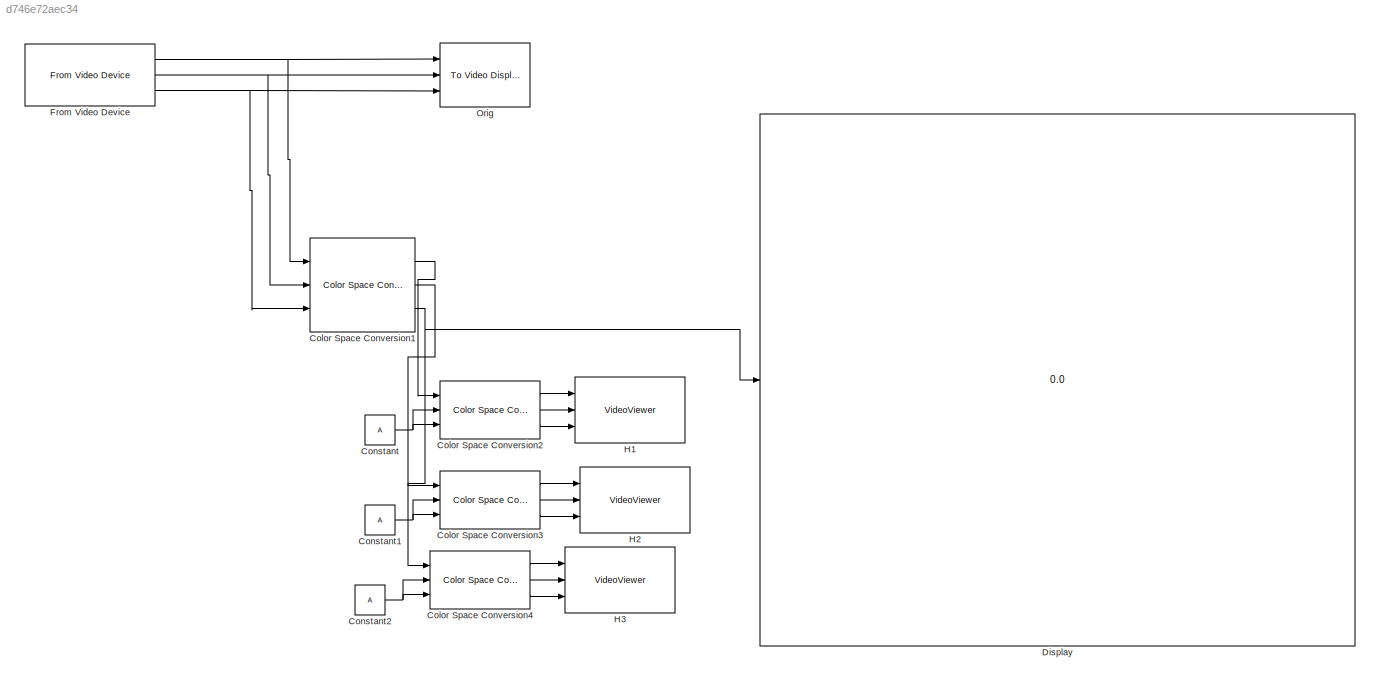
MODEL slx_d746e72aec34
KIND model
CONFIG AbsTol = auto
CONFIG FixedStep = auto
CONFIG MaxStep = auto
CONFIG MinStep = auto
CONFIG RelTol = 1e-3
CONFIG SampleTimeConstraint = Unconstrained
CONFIG Solver = VariableStepAuto
CONFIG SolverMode = Auto
CONFIG SolverName = VariableStepAuto
CONFIG StartTime = 0.0
CONFIG StopTime = inf
BLOCK [Reference] Color Space Conversion1  REF=visionconversions/Color Space
 Conversion
  Ports = [3, 3]
  SourceBlock = visionconversions/Color Space\n Conversion
  SourceType = Color Space Conversion
BLOCK [Reference] Color Space Conversion2  REF=visionconversions/Color Space
 Conversion
  Ports = [3, 3]
  SourceBlock = visionconversions/Color Space\n Conversion
  SourceType = Color Space Conversion
BLOCK [Reference] Color Space Conversion3  REF=visionconversions/Color Space
 Conversion
  Ports = [3, 3]
  SourceBlock = visionconversions/Color Space\n Conversion
  SourceType = Color Space Conversion
BLOCK [Reference] Color Space Conversion4  REF=visionconversions/Color Space
 Conversion
  Ports = [3, 3]
  SourceBlock = visionconversions/Color Space\n Conversion
  SourceType = Color Space Conversion
BLOCK [Constant] Constant
  OutDataTypeStr = Inherit: Inherit via back propagation
  Value = A
BLOCK [Constant] Constant1
  OutDataTypeStr = Inherit: Inherit via back propagation
  Value = A
BLOCK [Constant] Constant2
  OutDataTypeStr = Inherit: Inherit via back propagation
  Value = A
BLOCK [Display] Display
  Decimation = 1
  Ports = [1]
BLOCK [Reference] From Video Device  REF=imaqlib/From Video Device
  Ports = [0, 3]
  SourceBlock = imaqlib/From Video Device
  SourceType = From Video Device
  UserDataPersistent = on
BLOCK [VideoViewer] H1
  FigPos = [12.2 522 575.2 415.2]
  Ports = [3]
  ScopeSpecificationString = vipscopes.VideoViewerScopeCfg('CurrentConfiguration', extmgr.ConfigurationSet(extmgr.Configuration('Core','General UI',true),extmgr.Configuration('Core','Source UI',true),extmgr.Configuration('Sources','WiredSimulink',true),extmgr.Configuration('Sources','Simulink',false),extmgr.Configuration('Sources','SimulinkEvent',false),extmgr.Configuration('Sources','File',false),extmgr.Configuration('Source...<+1639ch>
  colormapValue = gray(256)
BLOCK [VideoViewer] H2
  FigPos = [9 848 575 415]
  Ports = [3]
  ScopeSpecificationString = vipscopes.VideoViewerScopeCfg('CurrentConfiguration', extmgr.ConfigurationSet(extmgr.Configuration('Core','General UI',true),extmgr.Configuration('Core','Source UI',true),extmgr.Configuration('Sources','WiredSimulink',true),extmgr.Configuration('Sources','Simulink',false),extmgr.Configuration('Sources','SimulinkEvent',false),extmgr.Configuration('Sources','File',false),extmgr.Configuration('Source...<+1632ch>
  colormapValue = gray(256)
BLOCK [VideoViewer] H3
  FigPos = [576.2 520.4 575.2 415.2]
  Ports = [3]
  ScopeSpecificationString = vipscopes.VideoViewerScopeCfg('CurrentConfiguration', extmgr.ConfigurationSet(extmgr.Configuration('Core','General UI',true),extmgr.Configuration('Core','Source UI',true),extmgr.Configuration('Sources','WiredSimulink',true),extmgr.Configuration('Sources','Simulink',false),extmgr.Configuration('Sources','SimulinkEvent',false),extmgr.Configuration('Sources','File',false),extmgr.Configuration('Source...<+1642ch>
  colormapValue = gray(256)
BLOCK [Reference] Orig  REF=visionsinks/To Video Display
  Ports = [3]
  SourceBlock = visionsinks/To Video Display
  SourceType = To Video Display
LINE Color Space Conversion1:1 -> Color Space Conversion2:1
LINE Color Space Conversion1:2 -> Color Space Conversion3:1
NET Color Space Conversion1:3 -> Color Space Conversion4:1, Display:1
LINE Color Space Conversion2:1 -> H1:1
LINE Color Space Conversion2:2 -> H1:2
LINE Color Space Conversion2:3 -> H1:3
LINE Color Space Conversion3:1 -> H2:1
LINE Color Space Conversion3:2 -> H2:2
LINE Color Space Conversion3:3 -> H2:3
LINE Color Space Conversion4:1 -> H3:1
LINE Color Space Conversion4:2 -> H3:2
LINE Color Space Conversion4:3 -> H3:3
NET Constant1:1 -> Color Space Conversion3:2, Color Space Conversion3:3
NET Constant2:1 -> Color Space Conversion4:2, Color Space Conversion4:3
NET Constant:1 -> Color Space Conversion2:2, Color Space Conversion2:3
NET From Video Device:1 -> Color Space Conversion1:1, Orig:1
NET From Video Device:2 -> Color Space Conversion1:2, Orig:2
NET From Video Device:3 -> Color Space Conversion1:3, Orig:3
note: NET lines group one-source signal fan-out (src -> all destinations, sorted); 1:1 wires keep LINE
